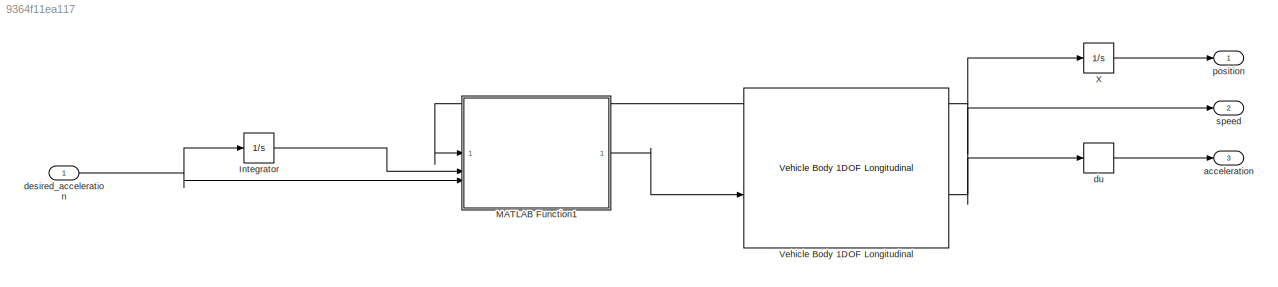
MODEL slx_9364f11ea117
KIND model
CONFIG AbsTol = auto
CONFIG EnableMultiTasking = off
CONFIG FixedStep = 0.001
CONFIG MaxStep = auto
CONFIG MinStep = auto
CONFIG RelTol = 1e-3
CONFIG SampleTimeConstraint = Unconstrained
CONFIG SolverName = ode1
CONFIG StartTime = 0.0
CONFIG StopTime = 20
BLOCK [Integrator] Integrator
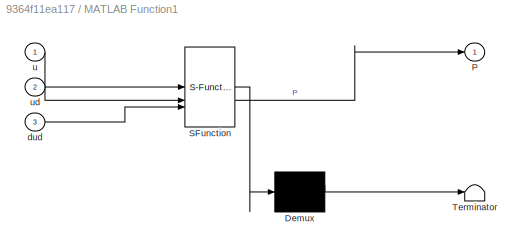
BLOCK [SubSystem] MATLAB Function1
  ErrorFcn = Stateflow.Translate.translate
  PermitHierarchicalResolution = ExplicitOnly
  SFBlockType = MATLAB Function
  TreatAsAtomicUnit = on
BLOCK [Demux] MATLAB Function1/ Demux 
  Outputs = 1
BLOCK [S-Function] MATLAB Function1/ SFunction 
  EnableBusSupport = on
  FunctionName = sf_sfun
  PortCounts = [3 2]
  SFcnIsStateOwnerBlock = off
  SFunctionDeploymentMode = off
  Tag = Stateflow S-Function 1
BLOCK [Terminator] MATLAB Function1/ Terminator 
BLOCK [Outport] MATLAB Function1/P
BLOCK [Inport] MATLAB Function1/dud
  Port = 3
BLOCK [Inport] MATLAB Function1/u
BLOCK [Inport] MATLAB Function1/ud
  Port = 2
BLOCK [Reference] Vehicle Body 1DOF Longitudinal  REF=autolibshared/Vehicle Body 1DOF Longitudinal
  LibrarySourceBlock = vehdynlibeom/Vehicle Body 1DOF Longitudinal
  SourceBlock = autolibshared/Vehicle Body 1DOF Longitudinal
  SourceType = Vehicle Body 1DOF Longitudinal
BLOCK [Integrator] X
BLOCK [Outport] acceleration
  Port = 3
BLOCK [Inport] desired_acceleration
BLOCK [Derivative] du
BLOCK [Outport] position
BLOCK [Outport] speed
  Port = 2
LINE Integrator:1 -> MATLAB Function1:2
LINE MATLAB Function1:1 -> Vehicle Body 1DOF Longitudinal:2
NET Vehicle Body 1DOF Longitudinal:2 -> MATLAB Function1:1, X:1, du:1, speed:1
LINE X:1 -> position:1
NET desired_acceleration:1 -> Integrator:1, MATLAB Function1:3
LINE du:1 -> acceleration:1
note: NET lines group one-source signal fan-out (src -> all destinations, sorted); 1:1 wires keep LINE
CHART MATLAB Function1 states=1 transitions=1
  STATE_LABEL 'eML_blk_kernel()'
  STATE_LABEL 'SCRIPT:\nfunction P = fcn(u, ud, dud)\n\nku = 25;\neu = u-ud;\nm = 1500;\n\nP = m*(-ku*eu+dud);'
CHART  states=0 transitions=0
